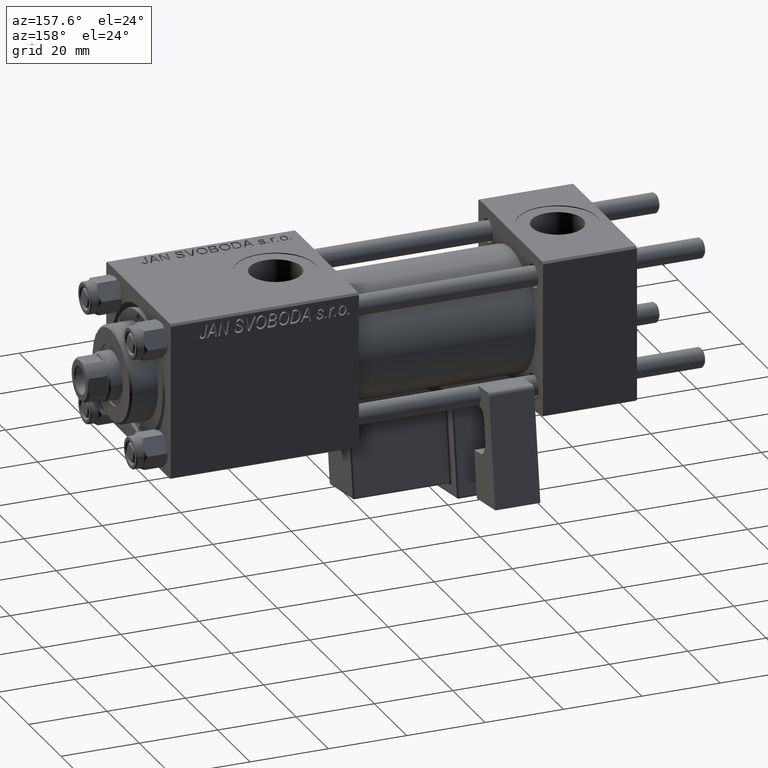
[diagram: clean part render]
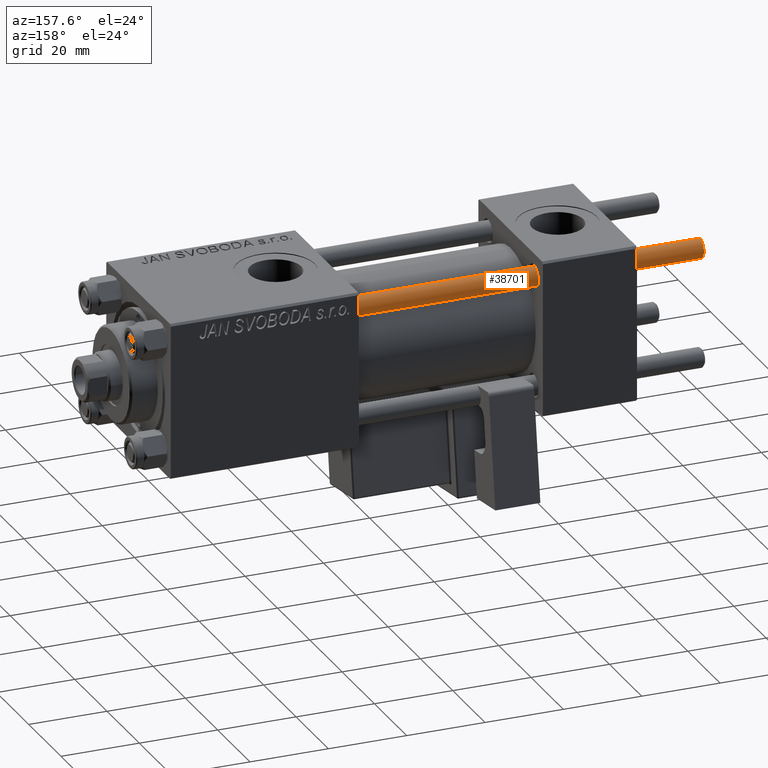
[diagram: same view with one face highlighted and labeled with its STEP entity id]
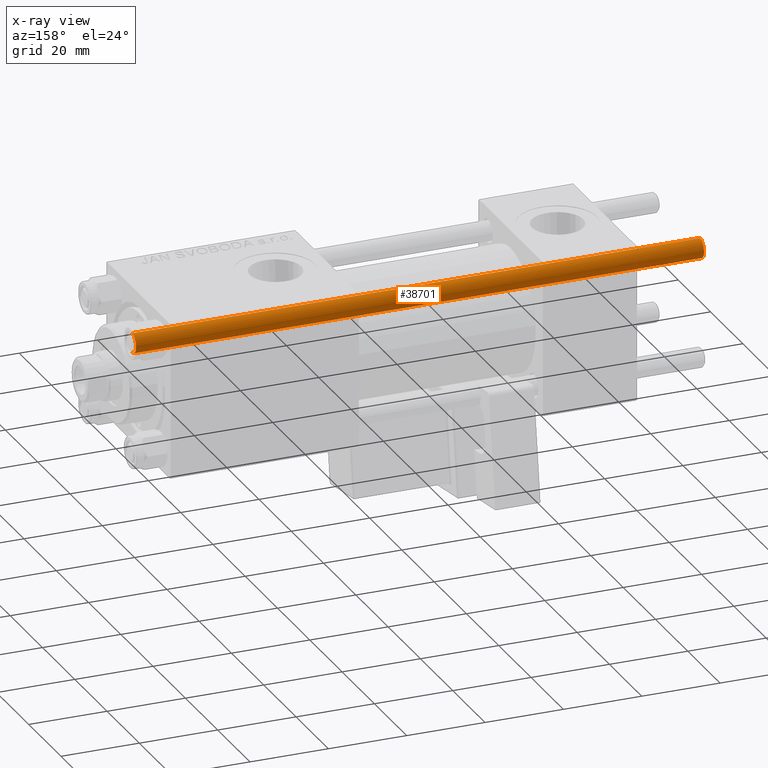
[diagram: x-ray of the same camera — body ghosted, the highlighted face saturated]
A machine part, auxiliary view. The second image highlights one B-rep face of the part: STEP entity #38701.
The next image is the same camera in x-ray: the body ghosted, the highlighted face saturated — about 0% of this face is hidden behind the body in this view.
In plain terms, the highlighted cylindrical surface (edge-blend (fillet) strip) has radius 2.5 mm, axis along (-1, -0, -0).
Its self-contained STEP definition (entity closure, byte-faithful):
#2064 = DIRECTION ( 'NONE',  ( 1.000000000000000000, 0.000000000000000000, 0.000000000000000000 ) ) ;
#2090 = ORIENTED_EDGE ( 'NONE', *, *, #9860, .F. ) ;
#3628 = CARTESIAN_POINT ( 'NONE',  ( -2.500000000000000000, 0.000000000000000000, 145.5000000000000284 ) ) ;
#3773 = EDGE_CURVE ( 'NONE', #18551, #6909, #12244, .T. ) ;
#4351 = FACE_OUTER_BOUND ( 'NONE', #14586, .T. ) ;
#6814 = ORIENTED_EDGE ( 'NONE', *, *, #9552, .T. ) ;
#6909 = VERTEX_POINT ( 'NONE', #17976 ) ;
#8912 = LINE ( 'NONE', #41869, #10668 ) ;
#9552 = EDGE_CURVE ( 'NONE', #18841, #42936, #34960, .T. ) ;
#9860 = EDGE_CURVE ( 'NONE', #18551, #42936, #23727, .T. ) ;
#10668 = VECTOR ( 'NONE', #25790, 1000.000000000000000 ) ;
#12244 = CIRCLE ( 'NONE', #41796, 2.500000000000000000 ) ;
#13632 = CARTESIAN_POINT ( 'NONE',  ( 2.500000000000000000, 3.061616997868383141E-16, 0.5000000000000559552 ) ) ;
#14586 = EDGE_LOOP ( 'NONE', ( #43216, #45692, #6814, #2090 ) ) ;
#15876 = CARTESIAN_POINT ( 'NONE',  ( -2.500000000000000000, 0.000000000000000000, 0.5000000000000559552 ) ) ;
#17976 = CARTESIAN_POINT ( 'NONE',  ( 2.500000000000000000, 3.061616997868383141E-16, 145.5000000000000284 ) ) ;
#18551 = VERTEX_POINT ( 'NONE', #3628 ) ;
#18841 = VERTEX_POINT ( 'NONE', #13632 ) ;
#19733 = DIRECTION ( 'NONE',  ( -0.000000000000000000, -0.000000000000000000, 1.000000000000000000 ) ) ;
#19898 = DIRECTION ( 'NONE',  ( -0.000000000000000000, -0.000000000000000000, -1.000000000000000000 ) ) ;
#20952 = DIRECTION ( 'NONE',  ( -1.000000000000000000, 0.000000000000000000, 0.000000000000000000 ) ) ;
#22036 = DIRECTION ( 'NONE',  ( -0.000000000000000000, -0.000000000000000000, -1.000000000000000000 ) ) ;
#23727 = LINE ( 'NONE', #40343, #35840 ) ;
#24307 = CARTESIAN_POINT ( 'NONE',  ( 0.000000000000000000, 0.000000000000000000, 145.5000000000000284 ) ) ;
#25790 = DIRECTION ( 'NONE',  ( -0.000000000000000000, -0.000000000000000000, -1.000000000000000000 ) ) ;
#26127 = CYLINDRICAL_SURFACE ( 'NONE', #43718, 2.500000000000000000 ) ;
#34960 = CIRCLE ( 'NONE', #41053, 2.500000000000000000 ) ;
#35840 = VECTOR ( 'NONE', #19898, 1000.000000000000000 ) ;
#37112 = DIRECTION ( 'NONE',  ( 1.000000000000000000, 0.000000000000000000, 0.000000000000000000 ) ) ;
#37836 = CARTESIAN_POINT ( 'NONE',  ( 0.000000000000000000, 0.000000000000000000, 146.0000000000000000 ) ) ;
#38701 = ADVANCED_FACE ( 'NONE', ( #4351 ), #26127, .T. ) ;
#39012 = EDGE_CURVE ( 'NONE', #6909, #18841, #8912, .T. ) ;
#40343 = CARTESIAN_POINT ( 'NONE',  ( -2.500000000000000000, 0.000000000000000000, 146.0000000000000000 ) ) ;
#40937 = DIRECTION ( 'NONE',  ( 0.000000000000000000, 0.000000000000000000, -1.000000000000000000 ) ) ;
#41053 = AXIS2_PLACEMENT_3D ( 'NONE', #51927, #19733, #2064 ) ;
#41796 = AXIS2_PLACEMENT_3D ( 'NONE', #24307, #40937, #37112 ) ;
#41869 = CARTESIAN_POINT ( 'NONE',  ( 2.500000000000000000, 3.061616997868383141E-16, 146.0000000000000000 ) ) ;
#42936 = VERTEX_POINT ( 'NONE', #15876 ) ;
#43216 = ORIENTED_EDGE ( 'NONE', *, *, #3773, .T. ) ;
#43718 = AXIS2_PLACEMENT_3D ( 'NONE', #37836, #22036, #20952 ) ;
#45692 = ORIENTED_EDGE ( 'NONE', *, *, #39012, .T. ) ;
#51927 = CARTESIAN_POINT ( 'NONE',  ( 0.000000000000000000, 0.000000000000000000, 0.5000000000000559552 ) ) ;